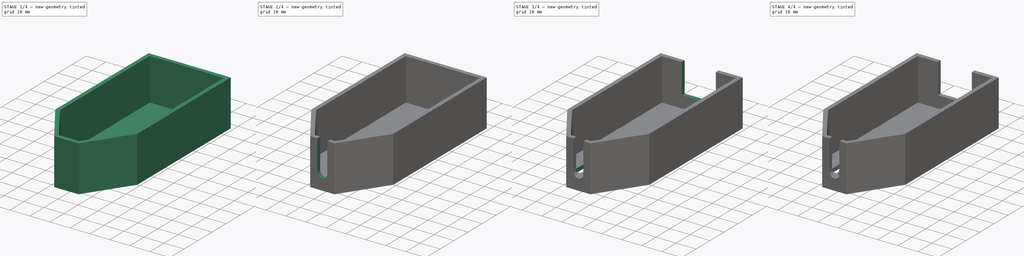
[diagram: build sequence overview — one tinted view per stage of 4, left to right]
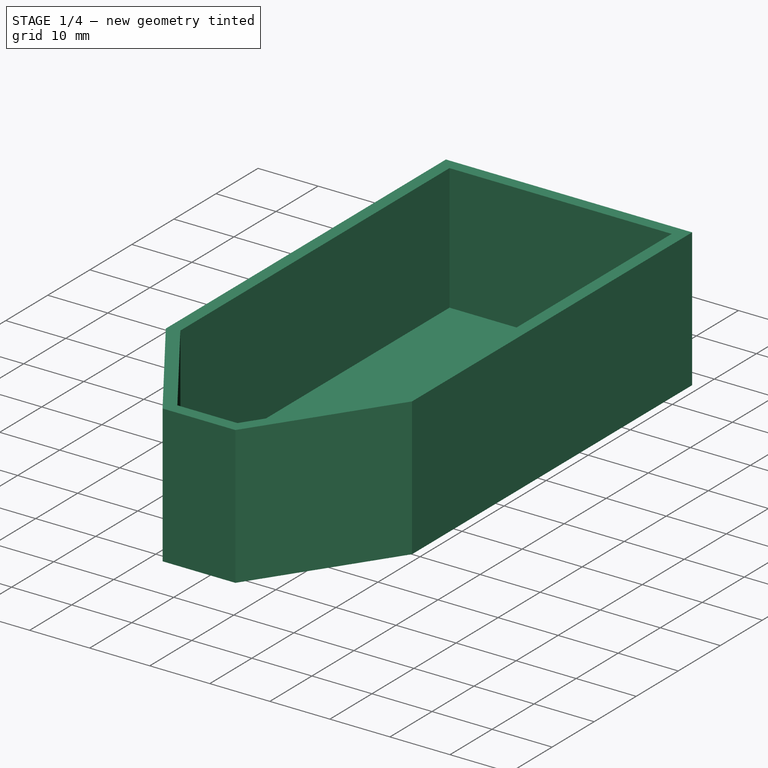
[diagram: stage 1 of 4 — iso view after this stage's code; geometry added in this stage tinted green]
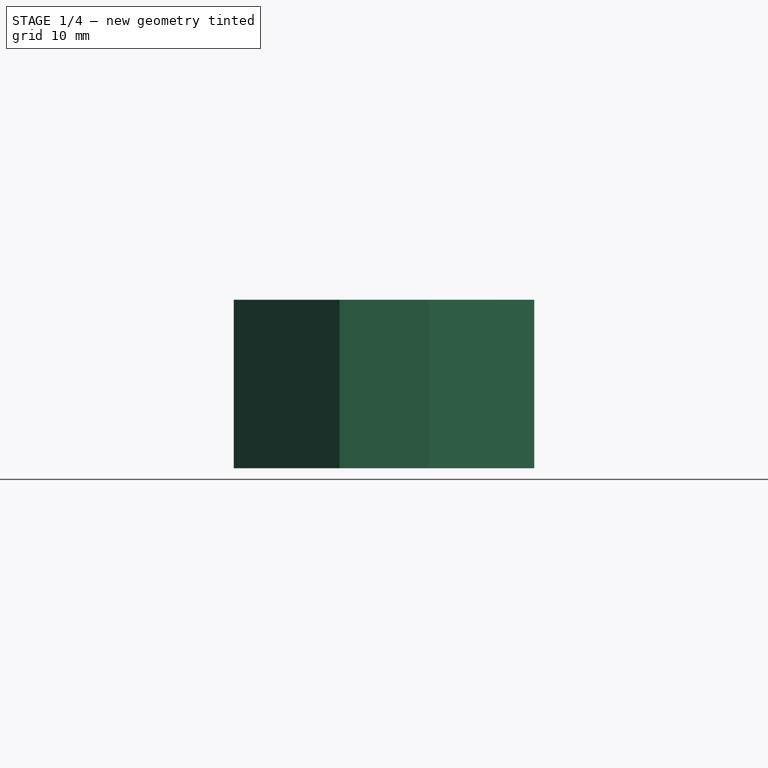
[diagram: stage 1 of 4 — front view after this stage's code; geometry added in this stage tinted green]
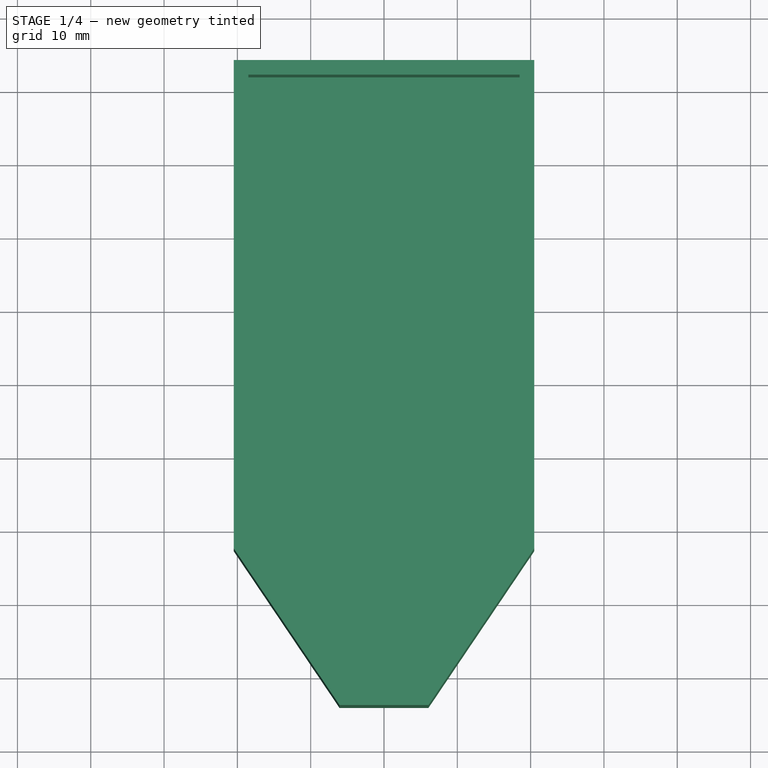
[diagram: stage 1 of 4 — top view after this stage's code; geometry added in this stage tinted green]
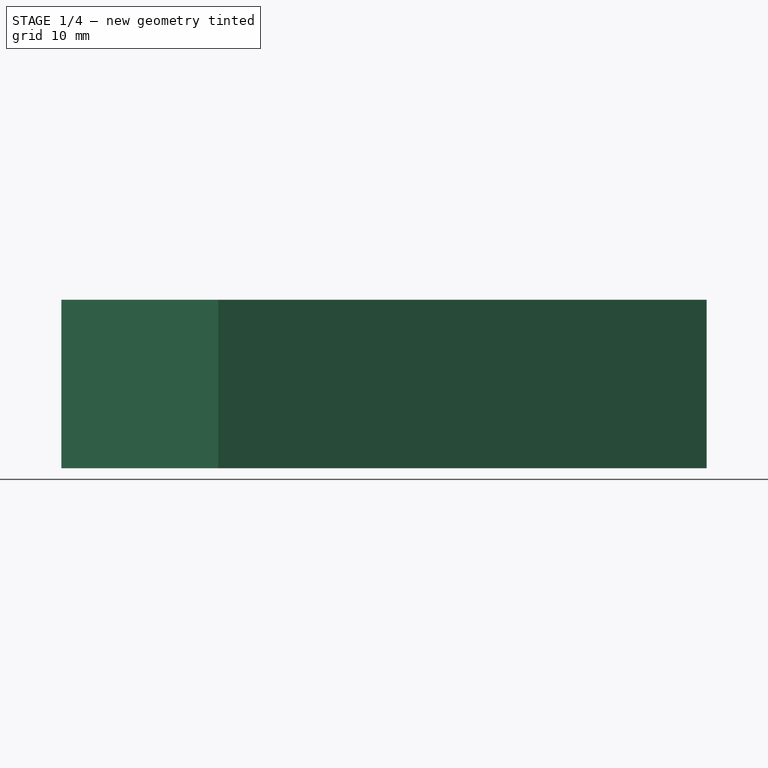
[diagram: stage 1 of 4 — right view after this stage's code; geometry added in this stage tinted green]
FCSTD DOCUMENT  (FreeCAD 0.21R33694 (Git))
Label: DS2438 Sondenadapter Gehäuse
License: All rights reserved
LicenseURL: http://en.wikipedia.org/wiki/All_rights_reserved
objects: PartDesign::SubtractiveBox×3, Sketcher::SketchObject×1, PartDesign::Pad×1, PartDesign::Thickness×1, PartDesign::SubtractiveCylinder×1, PartDesign::Mirrored×1, PartDesign::AdditiveWedge×1, PartDesign::LinearPattern×1, PartDesign::Body×1
note: 18 computed .brp shape members not serialized (recipe doc carries the construction recipe); baked Part::Feature solids carry a one-line shape summary decoded from their .brp

FEATURE [Sketcher::SketchObject] Sketch
  FullyConstrained = true
  MapMode = 5
  Support = -> [XY_Plane]
  sketch-geometry (6):
    g0: LineSegment StartX=-18.5 StartY=32 StartZ=0 EndX=18.5 EndY=32 EndZ=0
    g1: LineSegment StartX=18.5 StartY=32 StartZ=0 EndX=18.5 EndY=-32 EndZ=0
    g2: LineSegment StartX=-18.5 StartY=-32 StartZ=0 EndX=-18.5 EndY=32 EndZ=0
    g3: LineSegment StartX=-5 StartY=-52 StartZ=0 EndX=5 EndY=-52 EndZ=0
    g4: LineSegment StartX=-5 StartY=-52 StartZ=0 EndX=-18.5 EndY=-32 EndZ=0
    g5: LineSegment StartX=5 StartY=-52 StartZ=0 EndX=18.5 EndY=-32 EndZ=0
  constraints (14):
    c: Coincident(g0,g1)
    c: Coincident(g2,g0)
    c: Symmetric(g0,g0,g-2)
    c: Symmetric(g0,g2,g-1)
    c: Symmetric(g0,g1,g-1)
    c: Distance(g0,g2) = 64
    c: Distance(g0,g0) = 37
    c: Symmetric(g3,g3,g-2)
    c: Distance(g3,g3) = 10
    c: Coincident(g4,g3)
    c: Coincident(g4,g2)
    c: Coincident(g5,g3)
    c: Coincident(g5,g1)
    c: DistanceY(g3,g1) = 20
FEATURE [PartDesign::Pad] Pad
  Direction = (0,0,1)
  Length = 21
  Length2 = 10
  Profile = -> Sketch
  ReferenceAxis = -> Sketch [N_Axis]
  Type = 0
FEATURE [PartDesign::Thickness] Thickness
  Base = -> Pad [Face8]
  BaseFeature = -> Pad
  Intersection = false
  Join = 1
  Mode = 0
  SupportTransform = false
  Value = 2
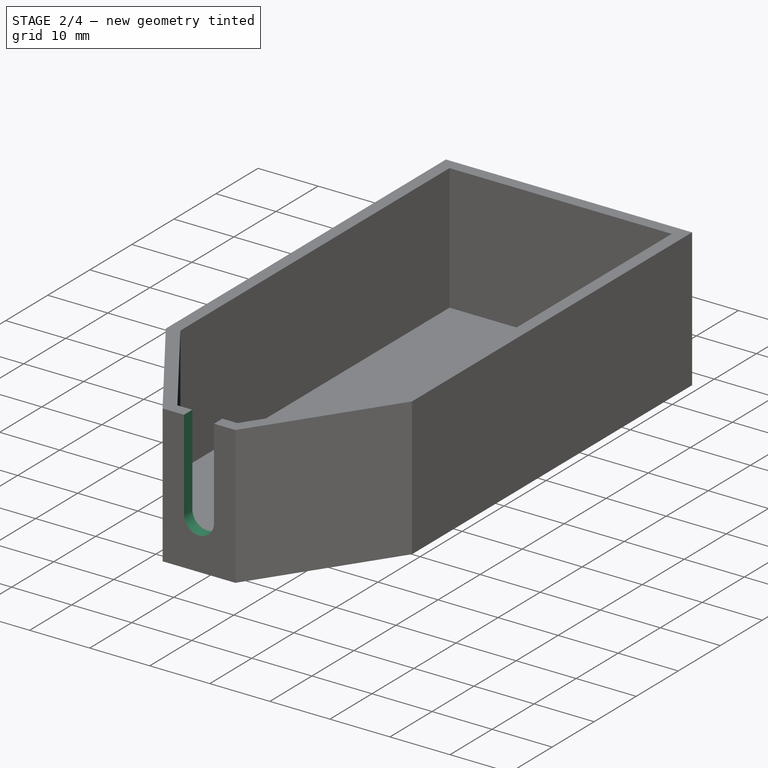
[diagram: stage 2 of 4 — iso view after this stage's code; geometry added in this stage tinted green]
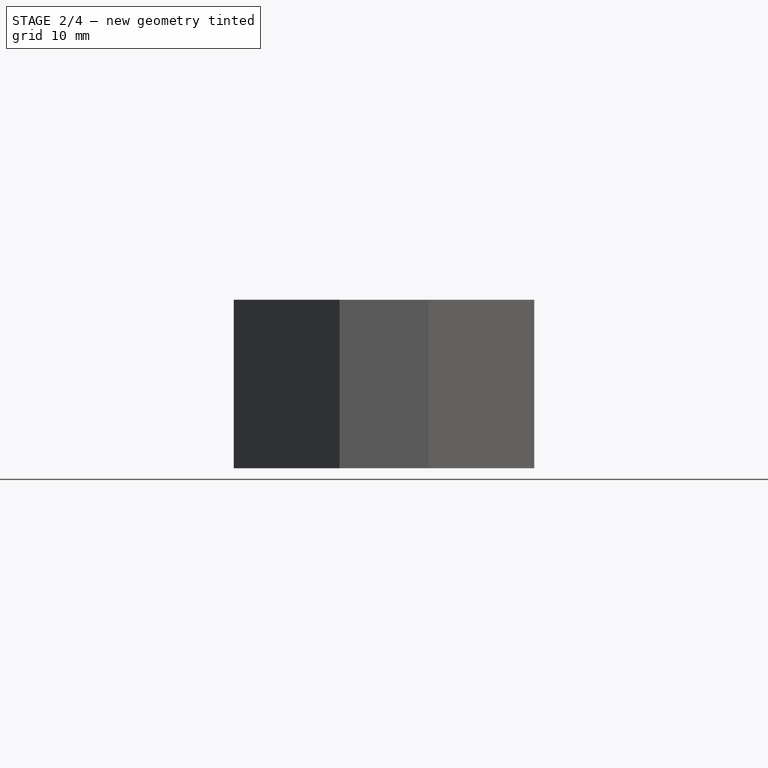
[diagram: stage 2 of 4 — front view after this stage's code; geometry added in this stage tinted green]
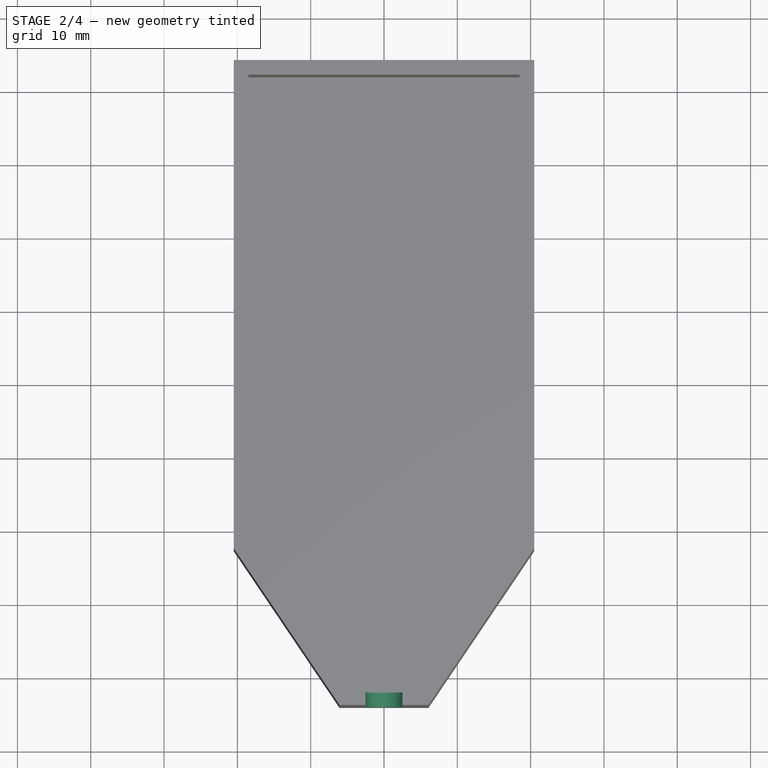
[diagram: stage 2 of 4 — top view after this stage's code; geometry added in this stage tinted green]
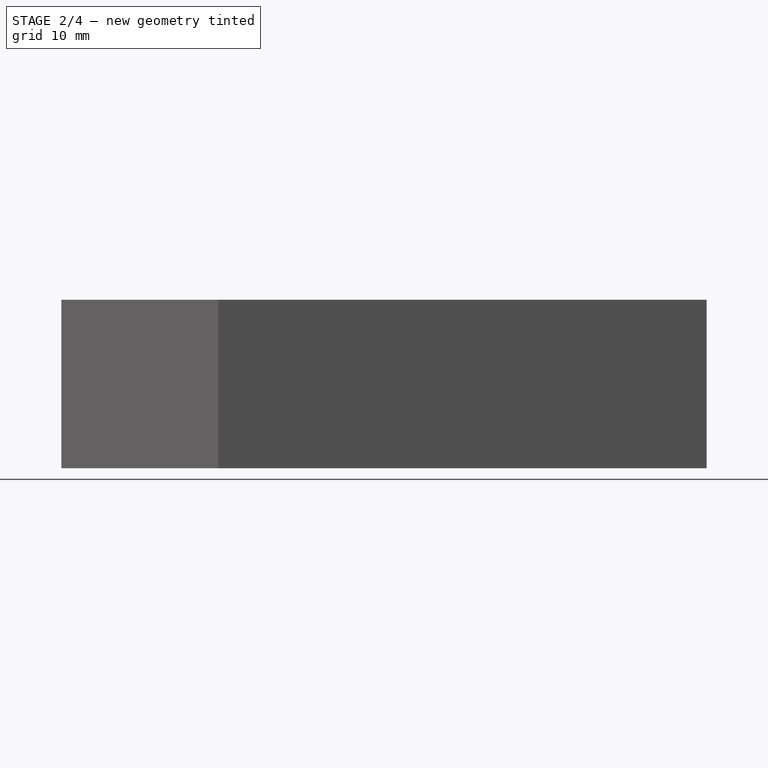
[diagram: stage 2 of 4 — right view after this stage's code; geometry added in this stage tinted green]
FEATURE [PartDesign::SubtractiveCylinder] Cylinder
  Angle = 360
  AttacherType = Attacher::AttachEngine3D
  AttachmentOffset = pos=(0,6,-4) rot=(0,0,1;0rad)
  BaseFeature = -> Thickness
  FirstAngle = 0
  Height = 10
  MapMode = 5
  Placement = pos=(0,-50,6) rot=(1,0,0;1.5708rad)
  Radius = 2.5
  SecondAngle = 0
  Support = -> [Thickness]
FEATURE [PartDesign::SubtractiveBox] Box
  AttacherType = Attacher::AttachEngine3D
  AttachmentOffset = pos=(-2.5,0,-3) rot=(0,0,1;0rad)
  BaseFeature = -> Cylinder
  Height = 4
  Length = 5
  MapMode = 5
  Placement = pos=(-2.5,-51,6) rot=(1,0,0;1.5708rad)
  Support = -> [Cylinder]
  Width = 17
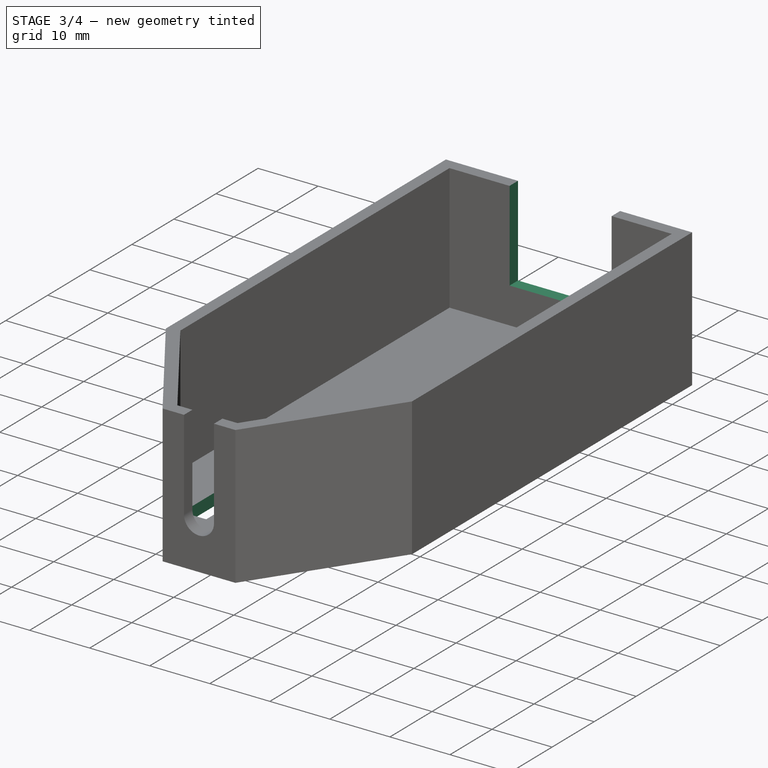
[diagram: stage 3 of 4 — iso view after this stage's code; geometry added in this stage tinted green]
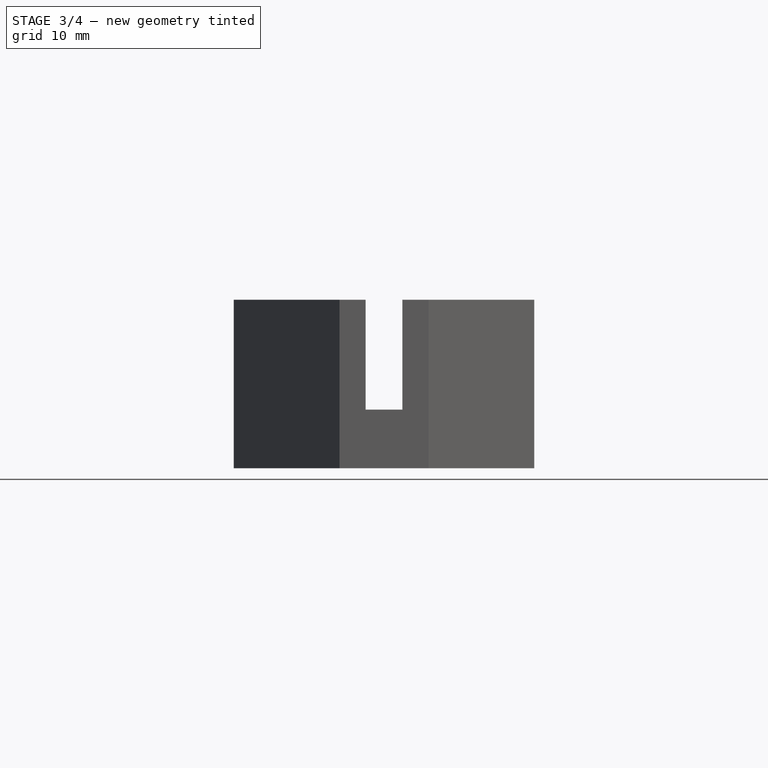
[diagram: stage 3 of 4 — front view after this stage's code; geometry added in this stage tinted green]
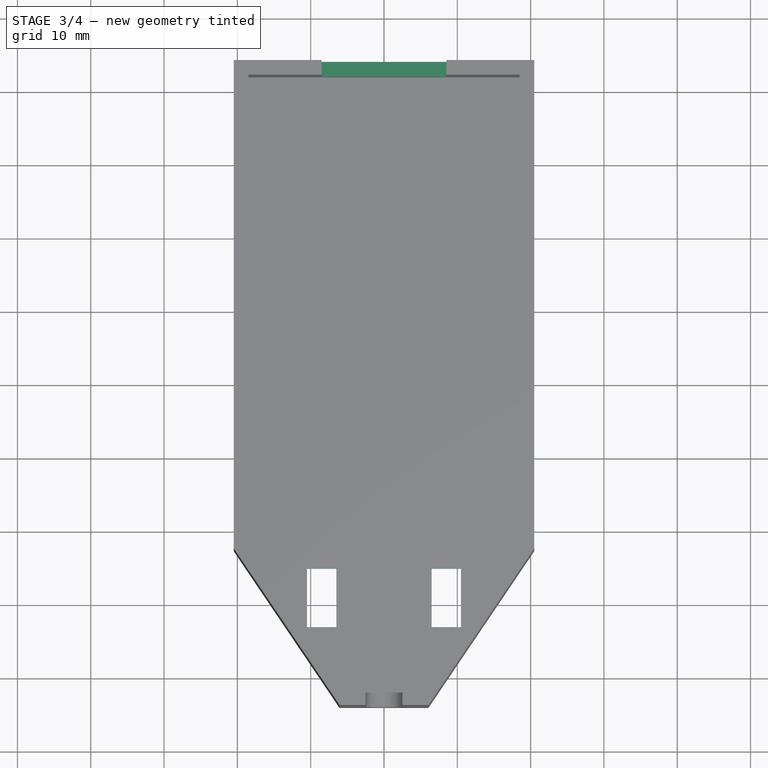
[diagram: stage 3 of 4 — top view after this stage's code; geometry added in this stage tinted green]
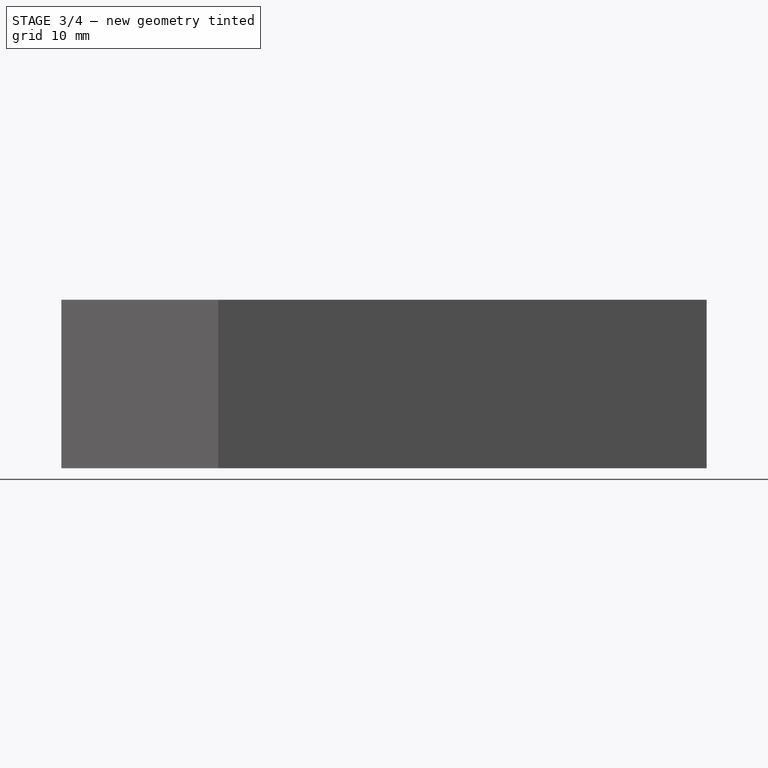
[diagram: stage 3 of 4 — right view after this stage's code; geometry added in this stage tinted green]
FEATURE [PartDesign::SubtractiveBox] Box001
  AttacherType = Attacher::AttachEngine3D
  AttachmentOffset = pos=(-8.5,6,-37) rot=(0,0,1;0rad)
  BaseFeature = -> Box
  Height = 10
  Length = 17
  MapMode = 5
  Placement = pos=(-8.5,37,6) rot=(1,0,0;1.5708rad)
  Support = -> [XZ_Plane]
  Width = 15
  expr: .AttachmentOffset.Base.x = -17 / 2
FEATURE [PartDesign::SubtractiveBox] Box002
  AttacherType = Attacher::AttachEngine3D
  AttachmentOffset = pos=(-2,72,-3) rot=(0,0,1;0rad)
  BaseFeature = -> Box001
  Height = 10
  Length = 4
  MapMode = 5
  Placement = pos=(-6.5,-35,-3) rot=(0,0,1;3.14159rad)
  Support = -> [Box001]
  Width = 8
FEATURE [PartDesign::Mirrored] Mirrored
  BaseFeature = -> Box002
  MirrorPlane = -> YZ_Plane
  Originals = -> [Box002]
  Placement = pos=(-6.5,-35,-3) rot=(0,0,1;3.14159rad)
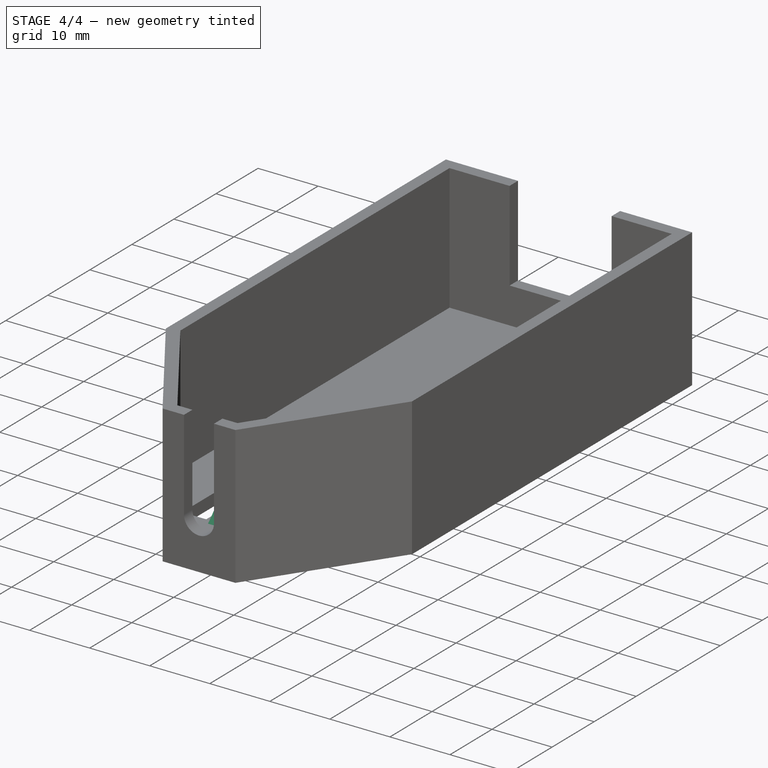
[diagram: stage 4 of 4 — iso view after this stage's code; geometry added in this stage tinted green]
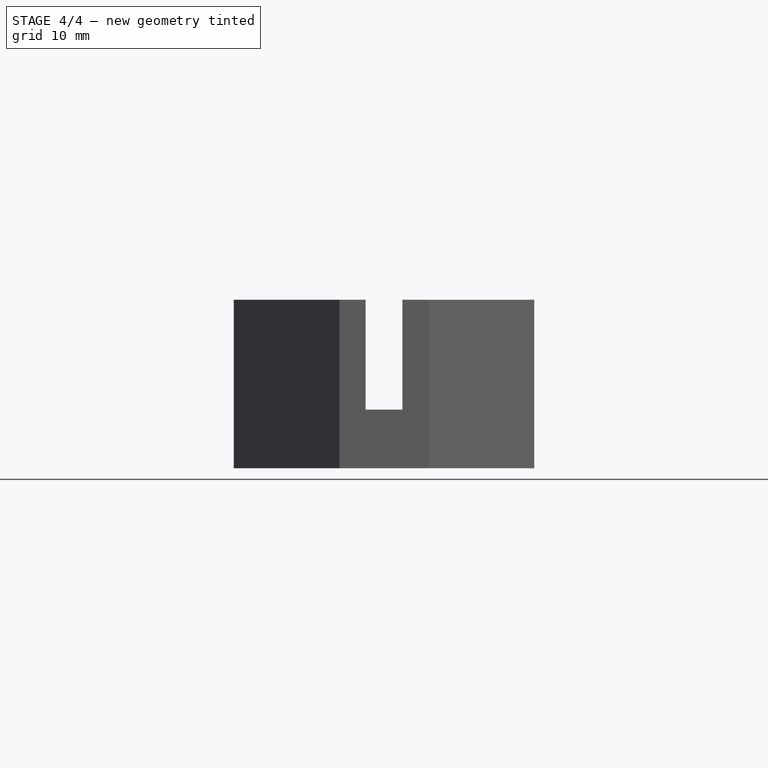
[diagram: stage 4 of 4 — front view after this stage's code; geometry added in this stage tinted green]
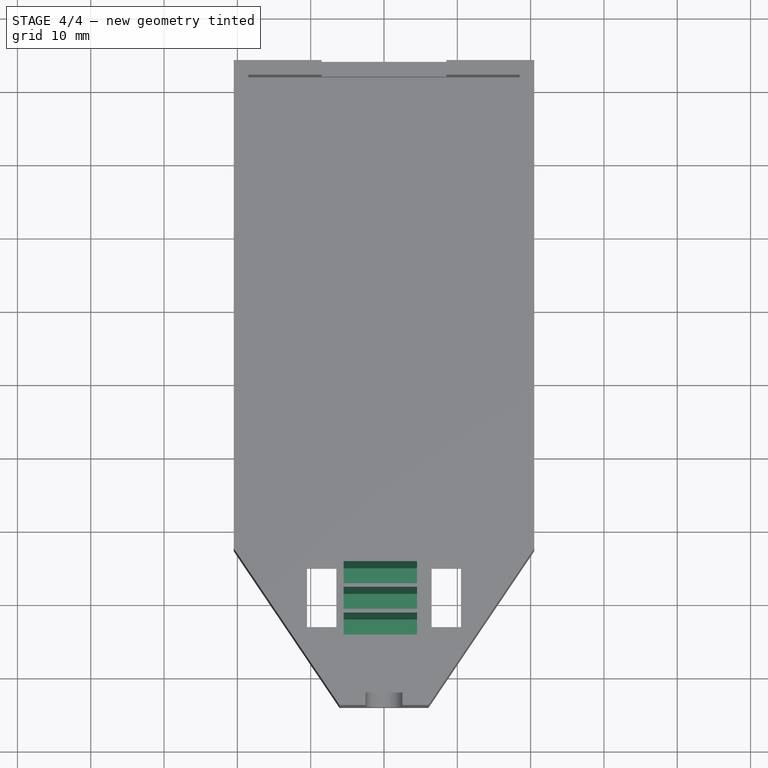
[diagram: stage 4 of 4 — top view after this stage's code; geometry added in this stage tinted green]
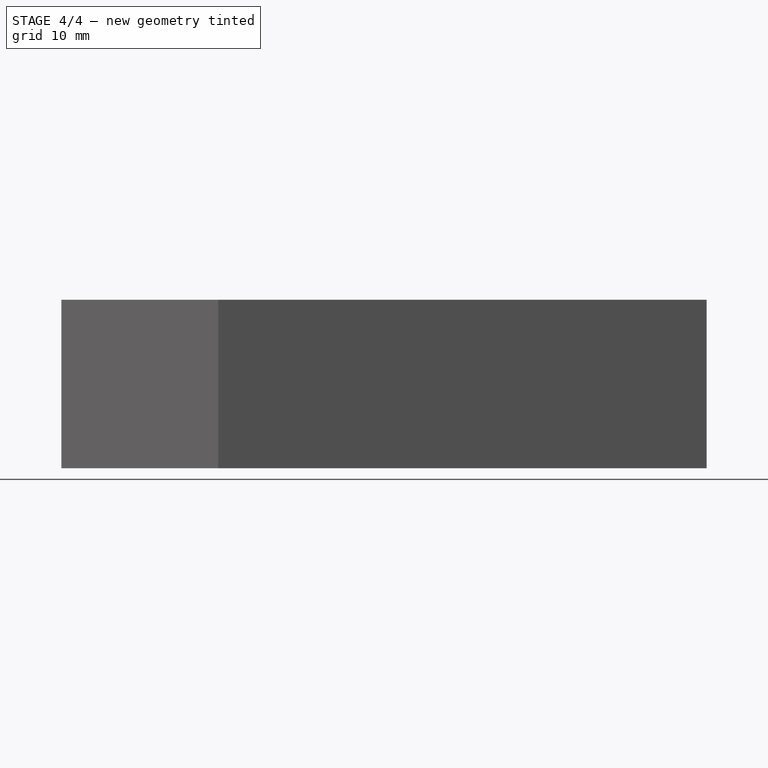
[diagram: stage 4 of 4 — right view after this stage's code; geometry added in this stage tinted green]
FEATURE [PartDesign::AdditiveWedge] Wedge
  AttacherType = Attacher::AttachEngine3D
  AttachmentOffset = pos=(-11,6,0) rot=(1,0,0;1.5708rad)
  BaseFeature = -> Mirrored
  MapMode = 5
  Placement = pos=(4.5,-41,0) rot=(0,0.707107,0.707107;3.14159rad)
  Support = -> [Mirrored]
  X2max = 10
  X2min = 0
  Xmax = 10
  Xmin = 0
  Ymax = 2
  Ymin = 0
  Z2max = 6
  Z2min = 6
  Zmax = 7
  Zmin = 4
FEATURE [PartDesign::LinearPattern] LinearPattern
  BaseFeature = -> Wedge
  Direction = -> Y_Axis
  Length = 7
  Occurrences = 3
  Originals = -> [Wedge]
  Placement = pos=(4.5,-41,0) rot=(0,0.707107,0.707107;3.14159rad)
  Reversed = true
FEATURE [PartDesign::Body] Body  label="Unterteil"
  Group = -> [Sketch,Pad,Thickness,Cylinder,Box,Box001,Box002,Mirrored,Wedge,LinearPattern]
  Origin = -> Origin
  Tip = -> LinearPattern
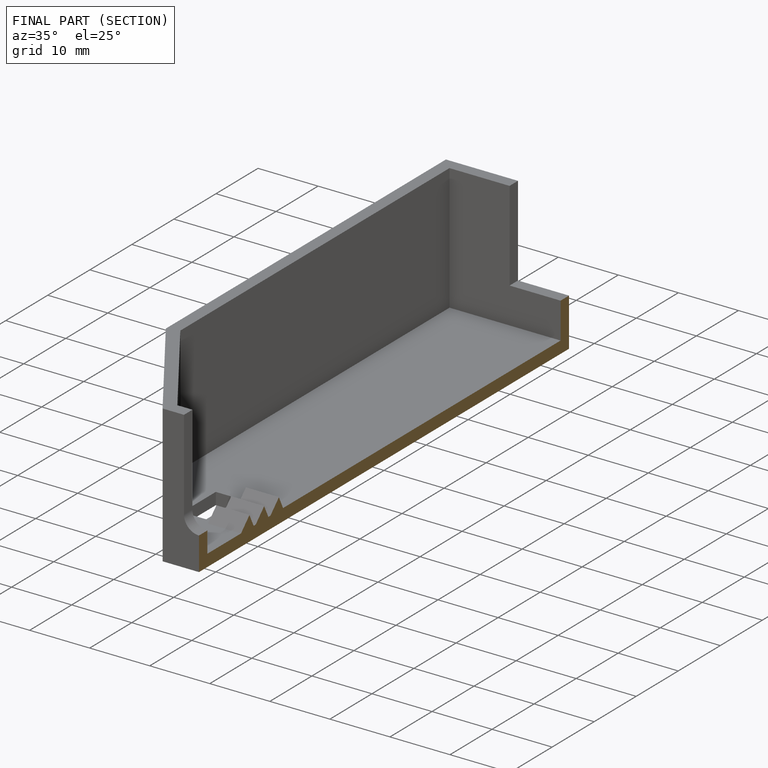
[diagram: finished part — half-section view (interior)]
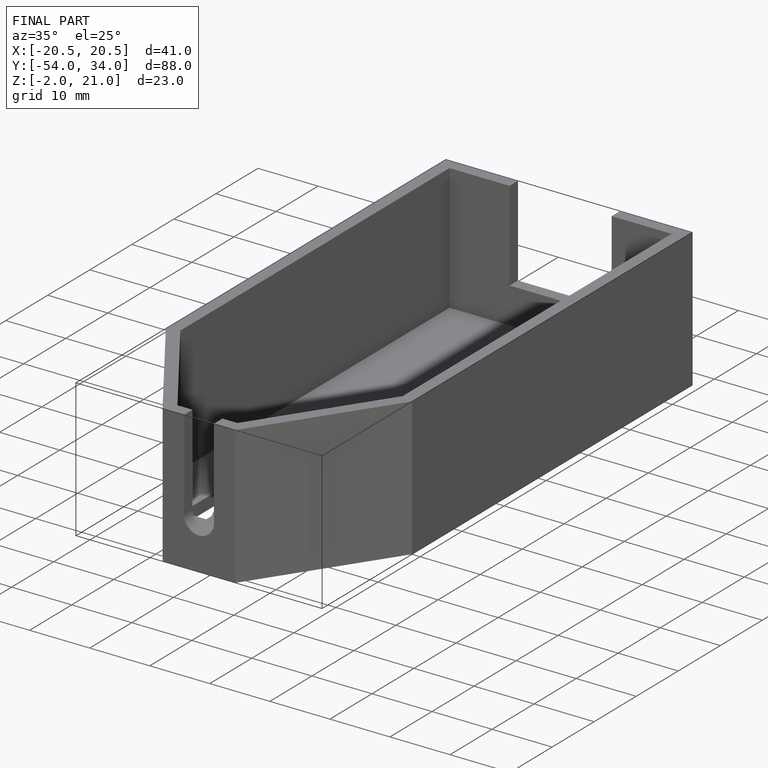
[diagram: finished part — iso view with bounding-box wireframe]
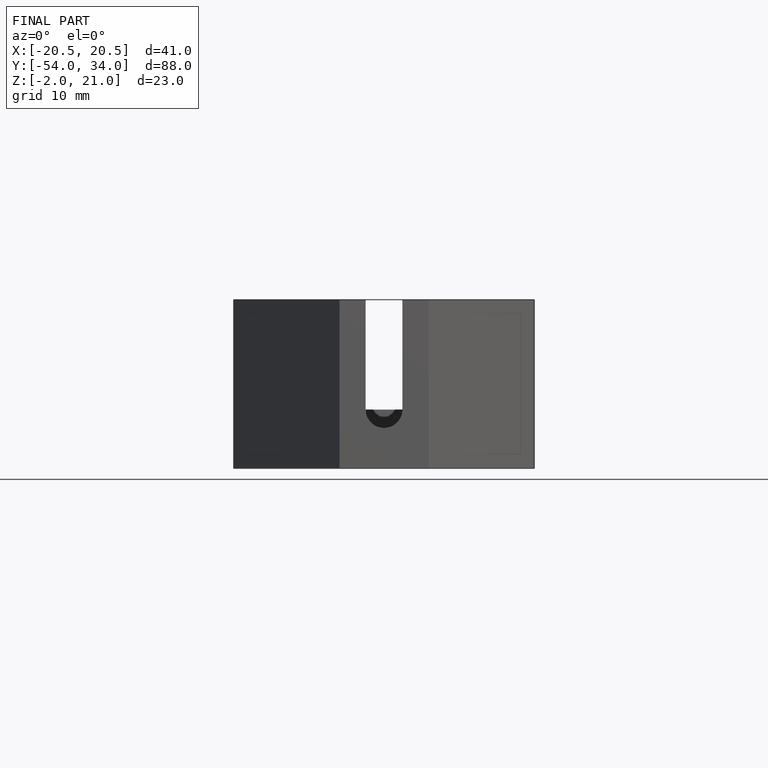
[diagram: finished part — front view with bounding-box wireframe]
